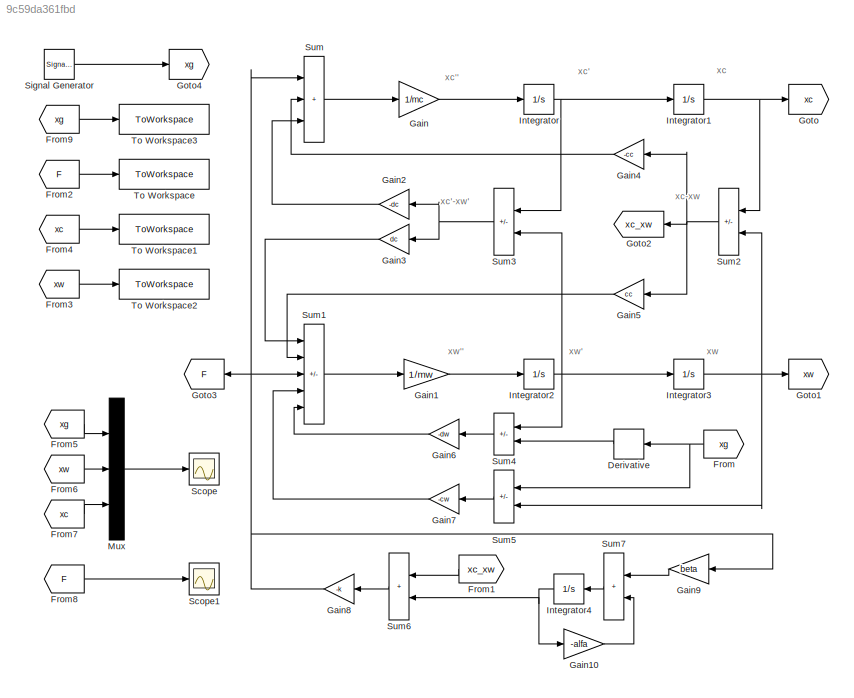
MODEL slx_9c59da361fbd
KIND model
CONFIG AbsTol = auto
CONFIG EnableMultiTasking = off
CONFIG FixedStep = auto
CONFIG MaxStep = auto
CONFIG MinStep = auto
CONFIG RelTol = 1e-3
CONFIG SampleTimeConstraint = Unconstrained
CONFIG Solver = VariableStepAuto
CONFIG SolverName = VariableStepAuto
CONFIG StartTime = 0.0
CONFIG StopTime = 40
BLOCK [Derivative] Derivative
  NameLocation = top
BLOCK [From] From
  GotoTag = xg
  NameLocation = top
BLOCK [From] From1
  GotoTag = xc_xw
  NameLocation = top
BLOCK [From] From2
  GotoTag = F
BLOCK [From] From3
  GotoTag = xw
BLOCK [From] From4
  GotoTag = xc
BLOCK [From] From5
  GotoTag = xg
BLOCK [From] From6
  GotoTag = xw
BLOCK [From] From7
  GotoTag = xc
BLOCK [From] From8
  GotoTag = F
BLOCK [From] From9
  GotoTag = xg
BLOCK [Gain] Gain
  Gain = 1/mc
BLOCK [Gain] Gain1
  Gain = 1/mw
BLOCK [Gain] Gain10
  Gain = -alfa
BLOCK [Gain] Gain2
  Gain = -dc
  NameLocation = top
BLOCK [Gain] Gain3
  Gain = dc
  NameLocation = top
BLOCK [Gain] Gain4
  Gain = -cc
  NameLocation = top
BLOCK [Gain] Gain5
  Gain = cc
  NameLocation = top
BLOCK [Gain] Gain6
  Gain = -dw
  NameLocation = top
BLOCK [Gain] Gain7
  Gain = -cw
  NameLocation = top
BLOCK [Gain] Gain8
  Gain = -k
  NameLocation = top
BLOCK [Gain] Gain9
  Gain = beta
  NameLocation = top
BLOCK [Goto] Goto
  GotoTag = xc
BLOCK [Goto] Goto1
  GotoTag = xw
BLOCK [Goto] Goto2
  GotoTag = xc_xw
  NameLocation = top
BLOCK [Goto] Goto3
  GotoTag = F
  NameLocation = top
BLOCK [Goto] Goto4
  GotoTag = xg
BLOCK [Integrator] Integrator
  Ports = [1, 1]
BLOCK [Integrator] Integrator1
  Ports = [1, 1]
BLOCK [Integrator] Integrator2
  Ports = [1, 1]
BLOCK [Integrator] Integrator3
  Ports = [1, 1]
BLOCK [Integrator] Integrator4
  NameLocation = top
  Ports = [1, 1]
BLOCK [Mux] Mux
  DisplayOption = bar
  Inputs = 3
  Ports = [3, 1]
BLOCK [Scope] Scope
  Floating = off
  NumInputPorts = 1
  Ports = [1]
  ScopeSpecificationString = Simulink.scopes.TimeScopeBlockCfg('CurrentConfiguration', extmgr.ConfigurationSet(extmgr.Configuration('Core','General UI',true),extmgr.Configuration('Core','Source UI',true),extmgr.Configuration('Sources','WiredSimulink',true),extmgr.Configuration('Visuals','Time Domain',true,'SerializedDisplays',{struct('MinYLimReal','-0.6763','MaxYLimReal','0.68082','YLabelReal','','MinYLimMag','0.00000','MaxYL...<+1417ch>
BLOCK [Scope] Scope1
  Floating = off
  NumInputPorts = 1
  Ports = [1]
  ScopeSpecificationString = Simulink.scopes.TimeScopeBlockCfg('CurrentConfiguration', extmgr.ConfigurationSet(extmgr.Configuration('Core','General UI',true),extmgr.Configuration('Core','Source UI',true),extmgr.Configuration('Sources','WiredSimulink',true,'DataLoggingVariableName','ScopeData1'),extmgr.Configuration('Visuals','Time Domain',true,'SerializedDisplays',{struct('MinYLimReal','-76.37051','MaxYLimReal','76.73884','YL...<+1425ch>
BLOCK [SignalGenerator] Signal Generator
  Amplitude = 0.2
  Frequency = 0.05
  Ports = [0, 1]
  WaveForm = square
BLOCK [Sum] Sum
  IconShape = rectangular
  Inputs = +++
  Ports = [3, 1]
BLOCK [Sum] Sum1
  IconShape = rectangular
  Inputs = ++-++
  Ports = [5, 1]
BLOCK [Sum] Sum2
  IconShape = rectangular
  Inputs = +-
  NameLocation = top
  Ports = [2, 1]
BLOCK [Sum] Sum3
  IconShape = rectangular
  Inputs = +-
  NameLocation = top
  Ports = [2, 1]
BLOCK [Sum] Sum4
  IconShape = rectangular
  Inputs = +-
  NameLocation = top
  Ports = [2, 1]
BLOCK [Sum] Sum5
  IconShape = rectangular
  Inputs = -+
  NameLocation = top
  Ports = [2, 1]
BLOCK [Sum] Sum6
  IconShape = rectangular
  NameLocation = top
  Ports = [2, 1]
BLOCK [Sum] Sum7
  IconShape = rectangular
  NameLocation = top
  Ports = [2, 1]
BLOCK [ToWorkspace] To Workspace
  FixptAsFi = on
  MaxDataPoints = inf
  Ports = [1]
  SampleTime = -1
  SaveFormat = Timeseries
  VariableName = F
BLOCK [ToWorkspace] To Workspace1
  FixptAsFi = on
  MaxDataPoints = inf
  Ports = [1]
  SampleTime = -1
  SaveFormat = Timeseries
  VariableName = xc
BLOCK [ToWorkspace] To Workspace2
  FixptAsFi = on
  MaxDataPoints = inf
  Ports = [1]
  SampleTime = -1
  SaveFormat = Timeseries
  VariableName = xw
BLOCK [ToWorkspace] To Workspace3
  FixptAsFi = on
  MaxDataPoints = inf
  Ports = [1]
  SampleTime = -1
  SaveFormat = Timeseries
  VariableName = xg
ANNOTATION (root): xc
ANNOTATION (root): xc'
ANNOTATION (root): xc''
ANNOTATION (root): xc'-xw'
ANNOTATION (root): xc-xw
ANNOTATION (root): xw
ANNOTATION (root): xw'
ANNOTATION (root): xw''
LINE Derivative:1 -> Sum4:2
LINE From1:1 -> Sum6:1
LINE From2:1 -> To Workspace:1
LINE From3:1 -> To Workspace2:1
LINE From4:1 -> To Workspace1:1
LINE From5:1 -> Mux:1
LINE From6:1 -> Mux:2
LINE From7:1 -> Mux:3
LINE From8:1 -> Scope1:1
LINE From9:1 -> To Workspace3:1
NET From:1 -> Derivative:1, Sum5:1
LINE Gain10:1 -> Sum7:2
LINE Gain1:1 -> Integrator2:1
LINE Gain2:1 -> Sum:3
LINE Gain3:1 -> Sum1:1
LINE Gain4:1 -> Sum:2
LINE Gain5:1 -> Sum1:2
LINE Gain6:1 -> Sum1:5
LINE Gain7:1 -> Sum1:4
NET Gain8:1 -> Gain9:1, Goto3:1, Sum1:3, Sum:1
LINE Gain9:1 -> Sum7:1
LINE Gain:1 -> Integrator:1
NET Integrator1:1 -> Goto:1, Sum2:1
NET Integrator2:1 -> Integrator3:1, Sum3:2, Sum4:1
NET Integrator3:1 -> Goto1:1, Sum2:2, Sum5:2
NET Integrator4:1 -> Gain10:1, Sum6:2
NET Integrator:1 -> Integrator1:1, Sum3:1
LINE Mux:1 -> Scope:1
LINE Signal Generator:1 -> Goto4:1
LINE Sum1:1 -> Gain1:1
NET Sum2:1 -> Gain4:1, Gain5:1, Goto2:1
NET Sum3:1 -> Gain2:1, Gain3:1
LINE Sum4:1 -> Gain6:1
LINE Sum5:1 -> Gain7:1
LINE Sum6:1 -> Gain8:1
LINE Sum7:1 -> Integrator4:1
LINE Sum:1 -> Gain:1
note: NET lines group one-source signal fan-out (src -> all destinations, sorted); 1:1 wires keep LINE
